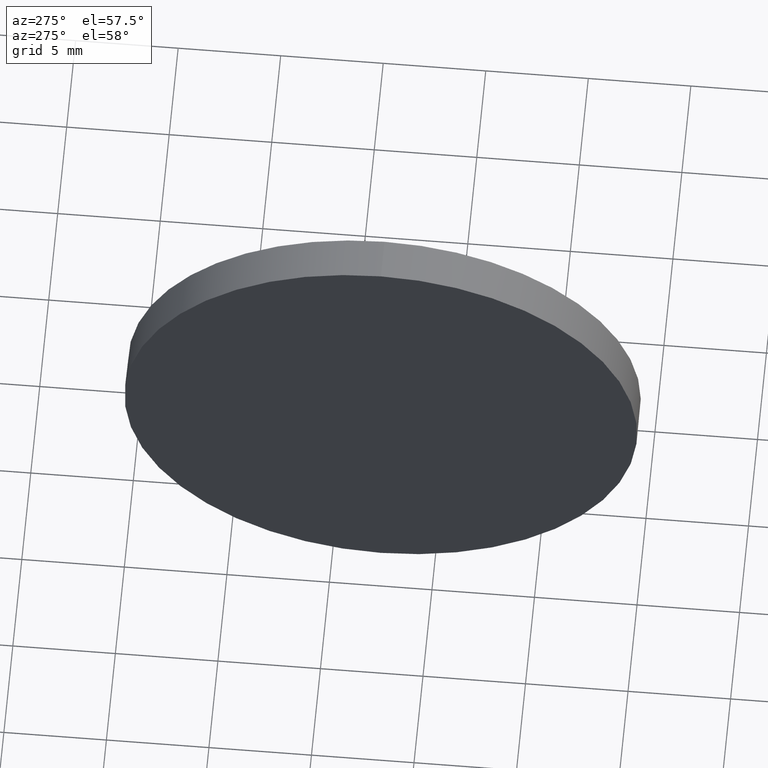
[diagram: clean part render]
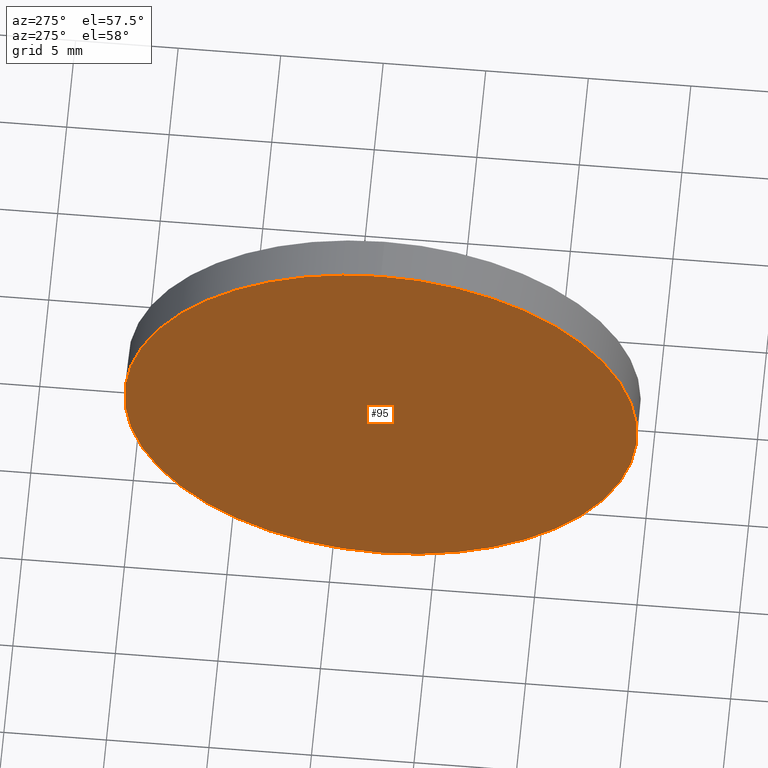
[diagram: same view with one face highlighted and labeled with its STEP entity id]
A machine part, auxiliary view. The second image highlights one B-rep face of the part: STEP entity #95.
In plain terms, the highlighted planar face has unit normal (1, 0, 0).
Its self-contained STEP definition (entity closure, byte-faithful):
#11 = AXIS2_PLACEMENT_3D ( 'NONE', #85, #87, #53 ) ;
#18 = CARTESIAN_POINT ( 'NONE',  ( 56.56002426272561900, 32.62964536423902500, 0.0000000000000000000 ) ) ;
#31 = CARTESIAN_POINT ( 'NONE',  ( 56.56002426272561900, 32.62964536423902500, 0.0000000000000000000 ) ) ;
#33 = PLANE ( 'NONE',  #164 ) ;
#53 = DIRECTION ( 'NONE',  ( 0.0000000000000000000, 0.0000000000000000000, 1.000000000000000000 ) ) ;
#61 = CARTESIAN_POINT ( 'NONE',  ( 56.56002426272561900, 32.62964536423902500, 12.49999999999999600 ) ) ;
#73 = VERTEX_POINT ( 'NONE', #150 ) ;
#74 = DIRECTION ( 'NONE',  ( 0.0000000000000000000, 0.0000000000000000000, 1.000000000000000000 ) ) ;
#84 = DIRECTION ( 'NONE',  ( 1.000000000000000000, 0.0000000000000000000, 0.0000000000000000000 ) ) ;
#85 = CARTESIAN_POINT ( 'NONE',  ( 56.56002426272561900, 32.62964536423902500, 0.0000000000000000000 ) ) ;
#87 = DIRECTION ( 'NONE',  ( -1.000000000000000000, -0.0000000000000000000, -0.0000000000000000000 ) ) ;
#90 = EDGE_CURVE ( 'NONE', #73, #163, #185, .T. ) ;
#92 = ORIENTED_EDGE ( 'NONE', *, *, #121, .T. ) ;
#95 = ADVANCED_FACE ( 'NONE', ( #139 ), #33, .F. ) ;
#105 = EDGE_LOOP ( 'NONE', ( #92, #181 ) ) ;
#108 = AXIS2_PLACEMENT_3D ( 'NONE', #18, #130, #74 ) ;
#121 = EDGE_CURVE ( 'NONE', #163, #73, #141, .T. ) ;
#130 = DIRECTION ( 'NONE',  ( -1.000000000000000000, -0.0000000000000000000, -0.0000000000000000000 ) ) ;
#139 = FACE_OUTER_BOUND ( 'NONE', #105, .T. ) ;
#141 = CIRCLE ( 'NONE', #11, 12.49999999999999600 ) ;
#150 = CARTESIAN_POINT ( 'NONE',  ( 56.56002426272561900, 32.62964536423902500, -12.49999999999999600 ) ) ;
#163 = VERTEX_POINT ( 'NONE', #61 ) ;
#164 = AXIS2_PLACEMENT_3D ( 'NONE', #31, #84, #170 ) ;
#170 = DIRECTION ( 'NONE',  ( 0.0000000000000000000, 0.0000000000000000000, -1.000000000000000000 ) ) ;
#181 = ORIENTED_EDGE ( 'NONE', *, *, #90, .T. ) ;
#185 = CIRCLE ( 'NONE', #108, 12.49999999999999600 ) ;